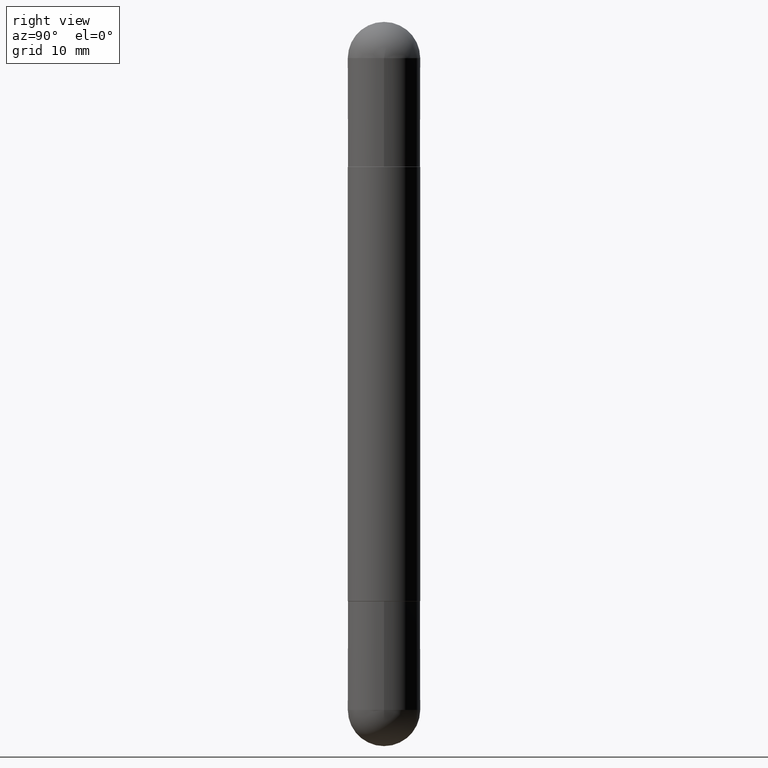
[diagram: clean part render]
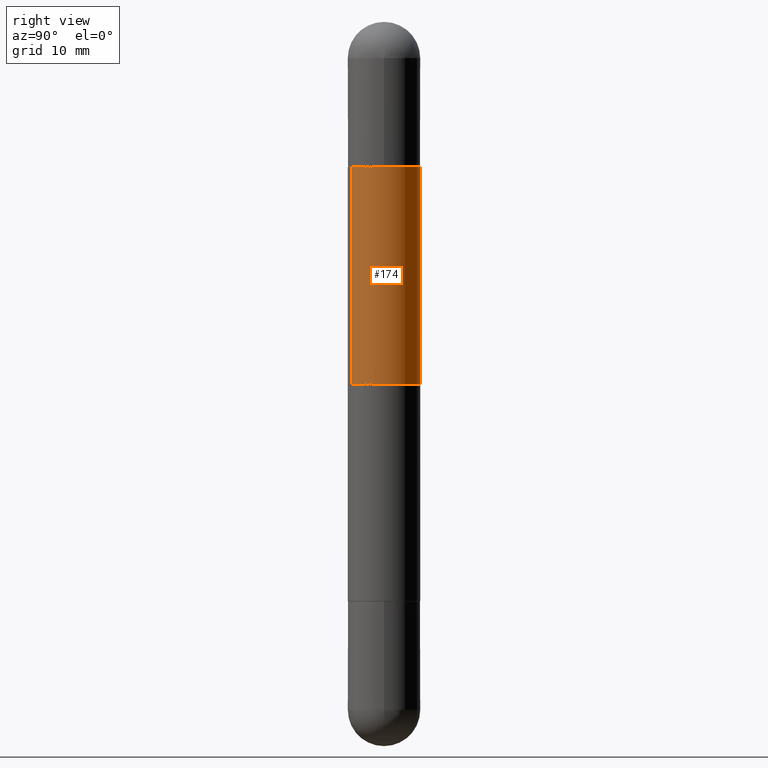
[diagram: same view with one face highlighted and labeled with its STEP entity id]
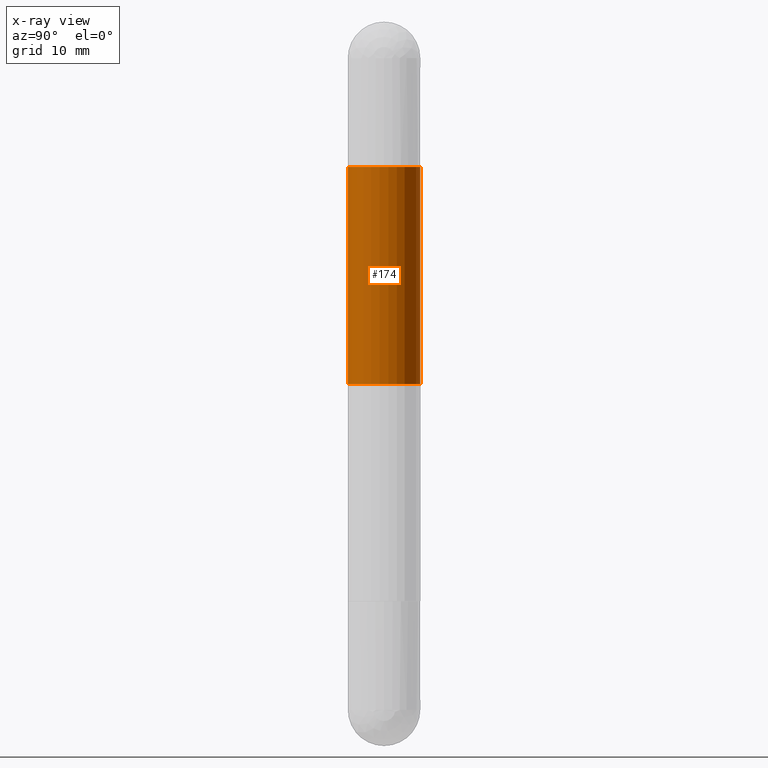
[diagram: x-ray of the same camera — body ghosted, the highlighted face saturated]
A machine part, right view. The second image highlights one B-rep face of the part: STEP entity #174.
The next image is the same camera in x-ray: the body ghosted, the highlighted face saturated — about 0% of this face is hidden behind the body in this view.
In plain terms, the highlighted cylindrical surface (edge-blend (fillet) strip) has radius 3.175 mm, axis along (-0, 0, -1).
Its self-contained STEP definition (entity closure, byte-faithful):
#7 = LINE ( 'NONE', #504, #235 ) ;
#28 = VERTEX_POINT ( 'NONE', #423 ) ;
#39 = ORIENTED_EDGE ( 'NONE', *, *, #442, .F. ) ;
#57 = CARTESIAN_POINT ( 'NONE',  ( 8.575622497214919324E-16, 0.1249999999999932693, -0.5010000000000006670 ) ) ;
#68 = DIRECTION ( 'NONE',  ( -2.445904692845177860E-29, 3.490857124336837980E-15, -1.000000000000000000 ) ) ;
#81 = DIRECTION ( 'NONE',  ( -2.445904692845178140E-29, 3.490857124336838375E-15, -1.000000000000000000 ) ) ;
#96 = CARTESIAN_POINT ( 'NONE',  ( 8.575622497214423328E-16, 0.1250000000000001388, -2.500000000000000000 ) ) ;
#100 = DIRECTION ( 'NONE',  ( -2.445904692845177860E-29, 3.490857124336837980E-15, -1.000000000000000000 ) ) ;
#101 = ORIENTED_EDGE ( 'NONE', *, *, #226, .T. ) ;
#107 = CARTESIAN_POINT ( 'NONE',  ( 8.575622497214909463E-16, 0.1249999999999957673, -1.250000000000000222 ) ) ;
#174 = ADVANCED_FACE ( 'NONE', ( #565 ), #201, .T. ) ;
#178 = DIRECTION ( 'NONE',  ( -0.000000000000000000, -0.000000000000000000, -1.000000000000000000 ) ) ;
#201 = CYLINDRICAL_SURFACE ( 'NONE', #802, 0.1250000000000001388 ) ;
#213 = AXIS2_PLACEMENT_3D ( 'NONE', #737, #178, #554 ) ;
#226 = EDGE_CURVE ( 'NONE', #28, #642, #7, .T. ) ;
#233 = CARTESIAN_POINT ( 'NONE',  ( -8.728703347107444874E-16, -0.1250000000000044964, -1.250000000000000222 ) ) ;
#235 = VECTOR ( 'NONE', #68, 39.37007874015748143 ) ;
#273 = CARTESIAN_POINT ( 'NONE',  ( 0.000000000000000000, 0.000000000000000000, -2.500000000000000444 ) ) ;
#321 = AXIS2_PLACEMENT_3D ( 'NONE', #414, #809, #362 ) ;
#362 = DIRECTION ( 'NONE',  ( -6.982962677686265922E-15, -1.000000000000000000, -3.278217592397108762E-15 ) ) ;
#391 = EDGE_CURVE ( 'NONE', #782, #444, #473, .T. ) ;
#414 = CARTESIAN_POINT ( 'NONE',  ( 4.889363480997510233E-29, -6.978223391549338005E-15, -0.5010000000000010001 ) ) ;
#423 = CARTESIAN_POINT ( 'NONE',  ( -8.728703347107364016E-16, -0.1250000000000072720, -0.5010000000000014442 ) ) ;
#442 = EDGE_CURVE ( 'NONE', #444, #642, #513, .T. ) ;
#444 = VERTEX_POINT ( 'NONE', #107 ) ;
#473 = LINE ( 'NONE', #96, #596 ) ;
#504 = CARTESIAN_POINT ( 'NONE',  ( -8.728703347107842263E-16, -0.1250000000000001388, -2.500000000000001332 ) ) ;
#513 = CIRCLE ( 'NONE', #213, 0.1250000000000001388 ) ;
#554 = DIRECTION ( 'NONE',  ( -1.000000000000000000, 0.000000000000000000, 0.000000000000000000 ) ) ;
#565 = FACE_OUTER_BOUND ( 'NONE', #692, .T. ) ;
#576 = ORIENTED_EDGE ( 'NONE', *, *, #714, .F. ) ;
#596 = VECTOR ( 'NONE', #100, 39.37007874015748143 ) ;
#630 = DIRECTION ( 'NONE',  ( -6.982962677686265922E-15, -1.000000000000000000, -4.370956789862816416E-15 ) ) ;
#642 = VERTEX_POINT ( 'NONE', #233 ) ;
#669 = CIRCLE ( 'NONE', #321, 0.1250000000000002776 ) ;
#677 = ORIENTED_EDGE ( 'NONE', *, *, #391, .F. ) ;
#692 = EDGE_LOOP ( 'NONE', ( #677, #576, #101, #39 ) ) ;
#714 = EDGE_CURVE ( 'NONE', #28, #782, #669, .T. ) ;
#737 = CARTESIAN_POINT ( 'NONE',  ( 3.057380866056473516E-29, -4.363571405421049546E-15, -1.250000000000000222 ) ) ;
#782 = VERTEX_POINT ( 'NONE', #57 ) ;
#802 = AXIS2_PLACEMENT_3D ( 'NONE', #273, #81, #630 ) ;
#809 = DIRECTION ( 'NONE',  ( 2.445904692845178140E-29, -3.490857124336838375E-15, 1.000000000000000000 ) ) ;